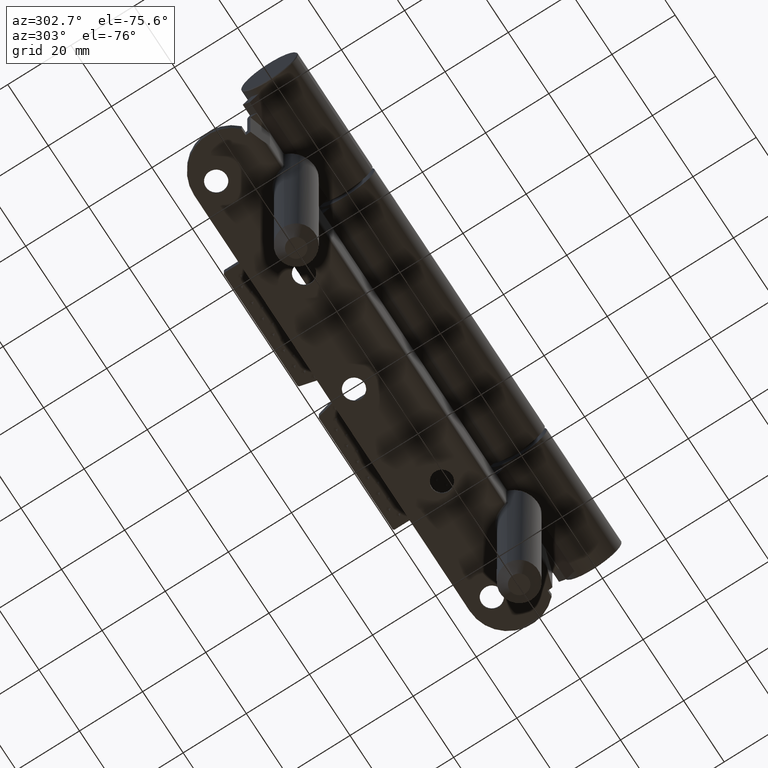
[diagram: clean part render]
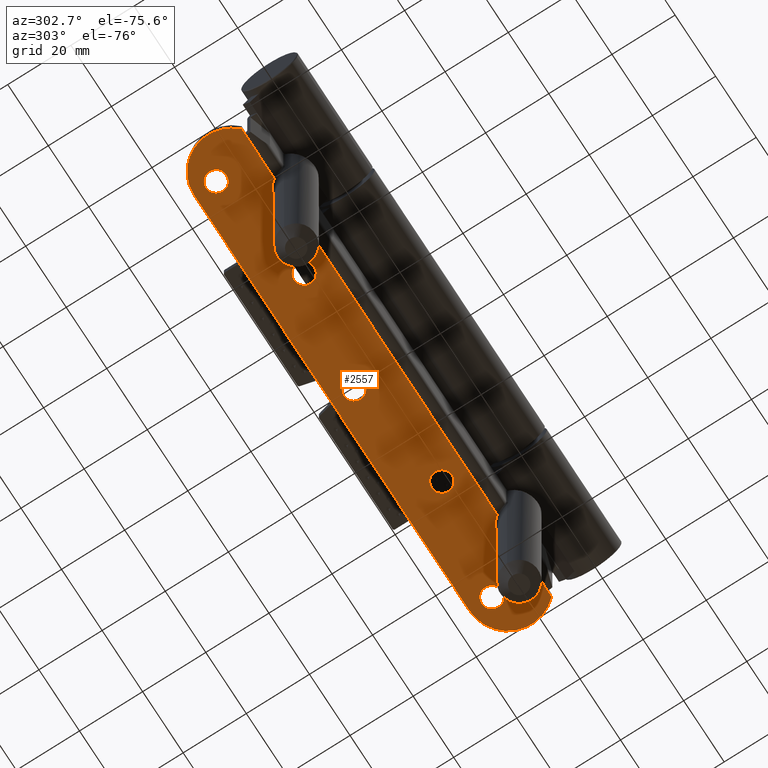
[diagram: same view with one face highlighted and labeled with its STEP entity id]
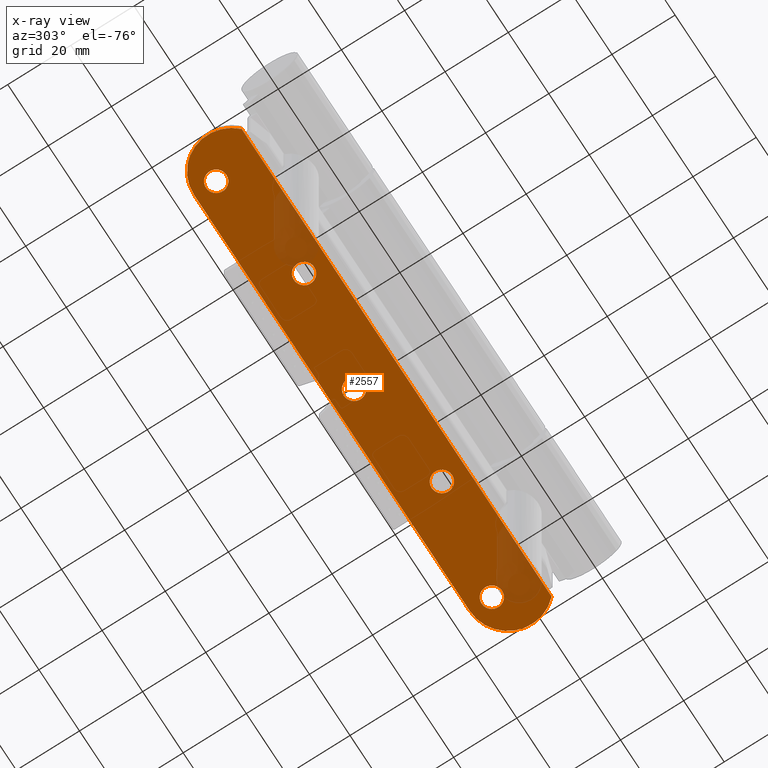
[diagram: x-ray of the same camera — body ghosted, the highlighted face saturated]
A machine part, auxiliary view. The second image highlights one B-rep face of the part: STEP entity #2557.
The next image is the same camera in x-ray: the body ghosted, the highlighted face saturated — about 10% of this face is hidden behind the body in this view.
In plain terms, the highlighted planar face has unit normal (0, -0, -1).
Its self-contained STEP definition (entity closure, byte-faithful):
#343 = FACE_BOUND ( 'NONE', #47303, .T. ) ;
#1126 = FACE_BOUND ( 'NONE', #34579, .T. ) ;
#1792 = CARTESIAN_POINT ( 'NONE',  ( -20.50000000000009592, 0.000000000000000000, 0.000000000000000000 ) ) ;
#2154 = EDGE_CURVE ( 'NONE', #45159, #16596, #43866, .T. ) ;
#2557 = ADVANCED_FACE ( 'NONE', ( #29541, #343, #41570, #1126, #46109, #9195 ), #42091, .T. ) ;
#3052 = CARTESIAN_POINT ( 'NONE',  ( -7.000000000000047962, 68.00000000000000000, -5.204170427930421283E-15 ) ) ;
#3088 = EDGE_CURVE ( 'NONE', #15719, #38834, #25361, .T. ) ;
#3221 = CARTESIAN_POINT ( 'NONE',  ( -7.000000000000058620, 1.387778780781445676E-14, -8.673617379884035472E-15 ) ) ;
#3763 = AXIS2_PLACEMENT_3D ( 'NONE', #44359, #41150, #16270 ) ;
#3918 = AXIS2_PLACEMENT_3D ( 'NONE', #38123, #50402, #46404 ) ;
#4429 = EDGE_CURVE ( 'NONE', #45449, #25793, #36621, .T. ) ;
#4968 = CARTESIAN_POINT ( 'NONE',  ( -12.00000000000007994, -67.99999999999997158, -1.387778780781445676E-14 ) ) ;
#5069 = CARTESIAN_POINT ( 'NONE',  ( -3.750000000000035527, 68.00000000000000000, -5.204170427930421283E-15 ) ) ;
#5375 = AXIS2_PLACEMENT_3D ( 'NONE', #22384, #50976, #21868 ) ;
#6240 = DIRECTION ( 'NONE',  ( 3.697785493223478059E-32, 1.035379938102573791E-30, 1.000000000000000000 ) ) ;
#6797 = ORIENTED_EDGE ( 'NONE', *, *, #46417, .F. ) ;
#6816 = AXIS2_PLACEMENT_3D ( 'NONE', #42817, #47608, #27035 ) ;
#7118 = EDGE_CURVE ( 'NONE', #39190, #12837, #48971, .T. ) ;
#7170 = AXIS2_PLACEMENT_3D ( 'NONE', #49334, #46364, #20734 ) ;
#7483 = LINE ( 'NONE', #12007, #47062 ) ;
#7775 = VECTOR ( 'NONE', #32036, 1000.000000000000000 ) ;
#7951 = CARTESIAN_POINT ( 'NONE',  ( -7.000000000000058620, 1.387778780781445676E-14, -8.673617379884035472E-15 ) ) ;
#8471 = DIRECTION ( 'NONE',  ( -3.697785493223478059E-32, -1.035379938102573791E-30, -1.000000000000000000 ) ) ;
#9195 = FACE_BOUND ( 'NONE', #41307, .T. ) ;
#9318 = VERTEX_POINT ( 'NONE', #49740 ) ;
#9336 = DIRECTION ( 'NONE',  ( 1.000000000000000000, 0.000000000000000000, 0.000000000000000000 ) ) ;
#9730 = ORIENTED_EDGE ( 'NONE', *, *, #2154, .T. ) ;
#9833 = LINE ( 'NONE', #38439, #13419 ) ;
#10091 = DIRECTION ( 'NONE',  ( 6.463117025072475944E-31, -1.000000000000000000, -1.035379938102577995E-30 ) ) ;
#10360 = ORIENTED_EDGE ( 'NONE', *, *, #42735, .F. ) ;
#11214 = EDGE_LOOP ( 'NONE', ( #33241, #38129 ) ) ;
#12007 = CARTESIAN_POINT ( 'NONE',  ( 0.000000000000000000, 80.00000000000000000, -1.040834085586084257E-14 ) ) ;
#12410 = CARTESIAN_POINT ( 'NONE',  ( 0.000000000000000000, -68.00000000000000000, -3.469446951953614189E-15 ) ) ;
#12837 = VERTEX_POINT ( 'NONE', #26102 ) ;
#13324 = DIRECTION ( 'NONE',  ( 6.463117025072475944E-31, -1.000000000000000000, -1.035379938102577995E-30 ) ) ;
#13419 = VECTOR ( 'NONE', #10091, 1000.000000000000000 ) ;
#13914 = CARTESIAN_POINT ( 'NONE',  ( -9.750000000000063949, -33.99999999999997868, 3.469446951953614189E-15 ) ) ;
#15719 = VERTEX_POINT ( 'NONE', #40115 ) ;
#16270 = DIRECTION ( 'NONE',  ( 1.000000000000000000, 0.000000000000000000, 0.000000000000000000 ) ) ;
#16596 = VERTEX_POINT ( 'NONE', #37319 ) ;
#16928 = AXIS2_PLACEMENT_3D ( 'NONE', #45727, #42766, #9336 ) ;
#17626 = LINE ( 'NONE', #1792, #47989 ) ;
#18457 = CARTESIAN_POINT ( 'NONE',  ( -20.50000000000009592, 0.000000000000000000, 0.000000000000000000 ) ) ;
#19232 = VERTEX_POINT ( 'NONE', #12410 ) ;
#19269 = CIRCLE ( 'NONE', #3918, 3.250000000000012434 ) ;
#20038 = CIRCLE ( 'NONE', #49925, 12.00000000000005151 ) ;
#20578 = CARTESIAN_POINT ( 'NONE',  ( -10.25000000000004086, -68.00000000000000000, -8.673617379884035472E-15 ) ) ;
#20734 = DIRECTION ( 'NONE',  ( -1.000000000000000000, 8.615843082513044234E-31, 1.224646799147351975E-16 ) ) ;
#21193 = EDGE_CURVE ( 'NONE', #12837, #39190, #21428, .T. ) ;
#21428 = CIRCLE ( 'NONE', #33372, 3.250000000000013323 ) ;
#21577 = EDGE_CURVE ( 'NONE', #22941, #42343, #43541, .T. ) ;
#21749 = EDGE_CURVE ( 'NONE', #27219, #19232, #7483, .T. ) ;
#21836 = CIRCLE ( 'NONE', #38875, 12.00000000000005151 ) ;
#21868 = DIRECTION ( 'NONE',  ( 1.000000000000000000, 0.000000000000000000, 0.000000000000000000 ) ) ;
#22067 = CIRCLE ( 'NONE', #42560, 3.250000000000012434 ) ;
#22213 = ORIENTED_EDGE ( 'NONE', *, *, #45398, .T. ) ;
#22277 = ORIENTED_EDGE ( 'NONE', *, *, #35956, .T. ) ;
#22384 = CARTESIAN_POINT ( 'NONE',  ( -13.00000000000009059, 34.00000000000001421, -3.469446951953614189E-15 ) ) ;
#22606 = VERTEX_POINT ( 'NONE', #49732 ) ;
#22941 = VERTEX_POINT ( 'NONE', #46189 ) ;
#23088 = CARTESIAN_POINT ( 'NONE',  ( -13.00000000000009059, 34.00000000000001421, -3.469446951953614189E-15 ) ) ;
#23345 = DIRECTION ( 'NONE',  ( 1.000000000000000000, 0.000000000000000000, 0.000000000000000000 ) ) ;
#23369 = CARTESIAN_POINT ( 'NONE',  ( -20.50000000000009592, -74.49999999999995737, 1.734723475976807094E-15 ) ) ;
#23496 = EDGE_CURVE ( 'NONE', #51545, #22606, #42808, .T. ) ;
#23619 = DIRECTION ( 'NONE',  ( 3.697785493223478059E-32, 1.035379938102573791E-30, 1.000000000000000000 ) ) ;
#24298 = DIRECTION ( 'NONE',  ( 3.697785493223478059E-32, 1.035379938102573791E-30, 1.000000000000000000 ) ) ;
#25361 = CIRCLE ( 'NONE', #44953, 3.250000000000012434 ) ;
#25442 = EDGE_LOOP ( 'NONE', ( #45369, #49282 ) ) ;
#25793 = VERTEX_POINT ( 'NONE', #28397 ) ;
#26102 = CARTESIAN_POINT ( 'NONE',  ( -16.25000000000009237, 34.00000000000001421, -3.469446951953614189E-15 ) ) ;
#27010 = DIRECTION ( 'NONE',  ( 1.000000000000000000, 0.000000000000000000, -6.419766481290758443E-32 ) ) ;
#27035 = DIRECTION ( 'NONE',  ( 1.000000000000000000, 0.000000000000000000, 0.000000000000000000 ) ) ;
#27219 = VERTEX_POINT ( 'NONE', #41304 ) ;
#28397 = CARTESIAN_POINT ( 'NONE',  ( -3.750000000000028422, -68.00000000000000000, -8.673617379884035472E-15 ) ) ;
#29442 = EDGE_LOOP ( 'NONE', ( #30221, #6797, #48619, #30837, #10360, #38027 ) ) ;
#29541 = FACE_OUTER_BOUND ( 'NONE', #29442, .T. ) ;
#29611 = DIRECTION ( 'NONE',  ( 1.000000000000000000, -2.312964634635732800E-15, 0.000000000000000000 ) ) ;
#30221 = ORIENTED_EDGE ( 'NONE', *, *, #23496, .F. ) ;
#30837 = ORIENTED_EDGE ( 'NONE', *, *, #51816, .T. ) ;
#32036 = DIRECTION ( 'NONE',  ( 6.463117025072475944E-31, -1.000000000000000000, -1.035379938102577995E-30 ) ) ;
#32775 = AXIS2_PLACEMENT_3D ( 'NONE', #3052, #38661, #51225 ) ;
#33053 = EDGE_CURVE ( 'NONE', #22606, #35064, #9833, .T. ) ;
#33241 = ORIENTED_EDGE ( 'NONE', *, *, #35544, .T. ) ;
#33372 = AXIS2_PLACEMENT_3D ( 'NONE', #23088, #23619, #43148 ) ;
#34579 = EDGE_LOOP ( 'NONE', ( #22277, #45187 ) ) ;
#35064 = VERTEX_POINT ( 'NONE', #23369 ) ;
#35544 = EDGE_CURVE ( 'NONE', #42343, #22941, #51167, .T. ) ;
#35628 = DIRECTION ( 'NONE',  ( 3.697785493223478059E-32, 1.035379938102573791E-30, 1.000000000000000000 ) ) ;
#35956 = EDGE_CURVE ( 'NONE', #38834, #15719, #22067, .T. ) ;
#36621 = CIRCLE ( 'NONE', #16928, 3.250000000000012434 ) ;
#36672 = AXIS2_PLACEMENT_3D ( 'NONE', #43671, #6240, #23345 ) ;
#37115 = CARTESIAN_POINT ( 'NONE',  ( -9.750000000000078160, 34.00000000000001421, -3.469446951953614189E-15 ) ) ;
#37319 = CARTESIAN_POINT ( 'NONE',  ( -10.25000000000004796, 68.00000000000000000, -5.204170427930421283E-15 ) ) ;
#38027 = ORIENTED_EDGE ( 'NONE', *, *, #33053, .F. ) ;
#38123 = CARTESIAN_POINT ( 'NONE',  ( -7.000000000000047962, 68.00000000000000000, -5.204170427930421283E-15 ) ) ;
#38129 = ORIENTED_EDGE ( 'NONE', *, *, #21577, .T. ) ;
#38439 = CARTESIAN_POINT ( 'NONE',  ( -20.50000000000009592, 80.00000000000001421, -5.204170427930421283E-15 ) ) ;
#38661 = DIRECTION ( 'NONE',  ( 3.697785493223478059E-32, 1.035379938102573791E-30, 1.000000000000000000 ) ) ;
#38834 = VERTEX_POINT ( 'NONE', #44724 ) ;
#38875 = AXIS2_PLACEMENT_3D ( 'NONE', #47586, #39820, #27010 ) ;
#39190 = VERTEX_POINT ( 'NONE', #37115 ) ;
#39820 = DIRECTION ( 'NONE',  ( 3.697785493223478059E-32, 1.035379938102573791E-30, 1.000000000000000000 ) ) ;
#40115 = CARTESIAN_POINT ( 'NONE',  ( -10.25000000000005684, 1.427579801753734914E-14, -8.673617379884035472E-15 ) ) ;
#40551 = ORIENTED_EDGE ( 'NONE', *, *, #49407, .T. ) ;
#40584 = DIRECTION ( 'NONE',  ( 1.000000000000000000, -4.740750632337793612E-31, 0.000000000000000000 ) ) ;
#41150 = DIRECTION ( 'NONE',  ( 3.697785493223478059E-32, 1.035379938102573791E-30, 1.000000000000000000 ) ) ;
#41304 = CARTESIAN_POINT ( 'NONE',  ( 0.000000000000000000, 68.00000000000000000, -1.040834085586084257E-14 ) ) ;
#41307 = EDGE_LOOP ( 'NONE', ( #9730, #40551 ) ) ;
#41570 = FACE_BOUND ( 'NONE', #11214, .T. ) ;
#42091 = PLANE ( 'NONE',  #7170 ) ;
#42343 = VERTEX_POINT ( 'NONE', #13914 ) ;
#42560 = AXIS2_PLACEMENT_3D ( 'NONE', #3221, #35628, #51391 ) ;
#42735 = EDGE_CURVE ( 'NONE', #35064, #9318, #17626, .T. ) ;
#42766 = DIRECTION ( 'NONE',  ( 3.697785493223478059E-32, 1.035379938102573791E-30, 1.000000000000000000 ) ) ;
#42808 = LINE ( 'NONE', #18457, #7775 ) ;
#42817 = CARTESIAN_POINT ( 'NONE',  ( -13.00000000000007816, -33.99999999999997868, 3.469446951953614189E-15 ) ) ;
#43148 = DIRECTION ( 'NONE',  ( 1.000000000000000000, 0.000000000000000000, 0.000000000000000000 ) ) ;
#43541 = CIRCLE ( 'NONE', #6816, 3.250000000000013323 ) ;
#43671 = CARTESIAN_POINT ( 'NONE',  ( -13.00000000000007816, -33.99999999999997868, 3.469446951953614189E-15 ) ) ;
#43866 = CIRCLE ( 'NONE', #32775, 3.250000000000012434 ) ;
#44359 = CARTESIAN_POINT ( 'NONE',  ( -7.000000000000040856, -68.00000000000000000, -8.673617379884035472E-15 ) ) ;
#44724 = CARTESIAN_POINT ( 'NONE',  ( -3.750000000000045741, 1.387778780781445518E-14, -8.673617379884035472E-15 ) ) ;
#44953 = AXIS2_PLACEMENT_3D ( 'NONE', #7951, #24298, #40584 ) ;
#45159 = VERTEX_POINT ( 'NONE', #5069 ) ;
#45170 = ORIENTED_EDGE ( 'NONE', *, *, #4429, .T. ) ;
#45187 = ORIENTED_EDGE ( 'NONE', *, *, #3088, .T. ) ;
#45369 = ORIENTED_EDGE ( 'NONE', *, *, #7118, .T. ) ;
#45398 = EDGE_CURVE ( 'NONE', #25793, #45449, #45638, .T. ) ;
#45449 = VERTEX_POINT ( 'NONE', #20578 ) ;
#45638 = CIRCLE ( 'NONE', #3763, 3.250000000000012434 ) ;
#45727 = CARTESIAN_POINT ( 'NONE',  ( -7.000000000000040856, -68.00000000000000000, -8.673617379884035472E-15 ) ) ;
#46109 = FACE_BOUND ( 'NONE', #25442, .T. ) ;
#46189 = CARTESIAN_POINT ( 'NONE',  ( -16.25000000000007816, -33.99999999999997868, 3.469446951953614189E-15 ) ) ;
#46364 = DIRECTION ( 'NONE',  ( -1.224646799147351975E-16, -1.035379938102573966E-30, -1.000000000000000000 ) ) ;
#46404 = DIRECTION ( 'NONE',  ( 1.000000000000000000, 0.000000000000000000, 0.000000000000000000 ) ) ;
#46417 = EDGE_CURVE ( 'NONE', #27219, #51545, #21836, .T. ) ;
#47062 = VECTOR ( 'NONE', #52686, 1000.000000000000000 ) ;
#47303 = EDGE_LOOP ( 'NONE', ( #22213, #45170 ) ) ;
#47586 = CARTESIAN_POINT ( 'NONE',  ( -12.00000000000007994, 68.00000000000002842, -3.469446951953614189E-15 ) ) ;
#47608 = DIRECTION ( 'NONE',  ( 3.697785493223478059E-32, 1.035379938102573791E-30, 1.000000000000000000 ) ) ;
#47989 = VECTOR ( 'NONE', #13324, 1000.000000000000000 ) ;
#48619 = ORIENTED_EDGE ( 'NONE', *, *, #21749, .T. ) ;
#48971 = CIRCLE ( 'NONE', #5375, 3.250000000000013323 ) ;
#49282 = ORIENTED_EDGE ( 'NONE', *, *, #21193, .T. ) ;
#49334 = CARTESIAN_POINT ( 'NONE',  ( 0.000000000000000000, 80.00000000000000000, -1.040834085586084257E-14 ) ) ;
#49407 = EDGE_CURVE ( 'NONE', #16596, #45159, #19269, .T. ) ;
#49732 = CARTESIAN_POINT ( 'NONE',  ( -20.50000000000009592, 74.49999999999998579, -6.938893903907228378E-15 ) ) ;
#49740 = CARTESIAN_POINT ( 'NONE',  ( -20.50000000000009592, -76.47053717304869735, -3.469446951953614189E-15 ) ) ;
#49925 = AXIS2_PLACEMENT_3D ( 'NONE', #4968, #8471, #29611 ) ;
#50402 = DIRECTION ( 'NONE',  ( 3.697785493223478059E-32, 1.035379938102573791E-30, 1.000000000000000000 ) ) ;
#50976 = DIRECTION ( 'NONE',  ( 3.697785493223478059E-32, 1.035379938102573791E-30, 1.000000000000000000 ) ) ;
#51020 = CARTESIAN_POINT ( 'NONE',  ( -20.50000000000009237, 76.47053717304872578, -1.387778780781445676E-14 ) ) ;
#51167 = CIRCLE ( 'NONE', #36672, 3.250000000000013323 ) ;
#51225 = DIRECTION ( 'NONE',  ( 1.000000000000000000, 0.000000000000000000, 0.000000000000000000 ) ) ;
#51391 = DIRECTION ( 'NONE',  ( 1.000000000000000000, -4.740750632337793612E-31, 0.000000000000000000 ) ) ;
#51545 = VERTEX_POINT ( 'NONE', #51020 ) ;
#51816 = EDGE_CURVE ( 'NONE', #19232, #9318, #20038, .T. ) ;
#52686 = DIRECTION ( 'NONE',  ( 6.463117025072475944E-31, -1.000000000000000000, -1.035379938102577995E-30 ) ) ;